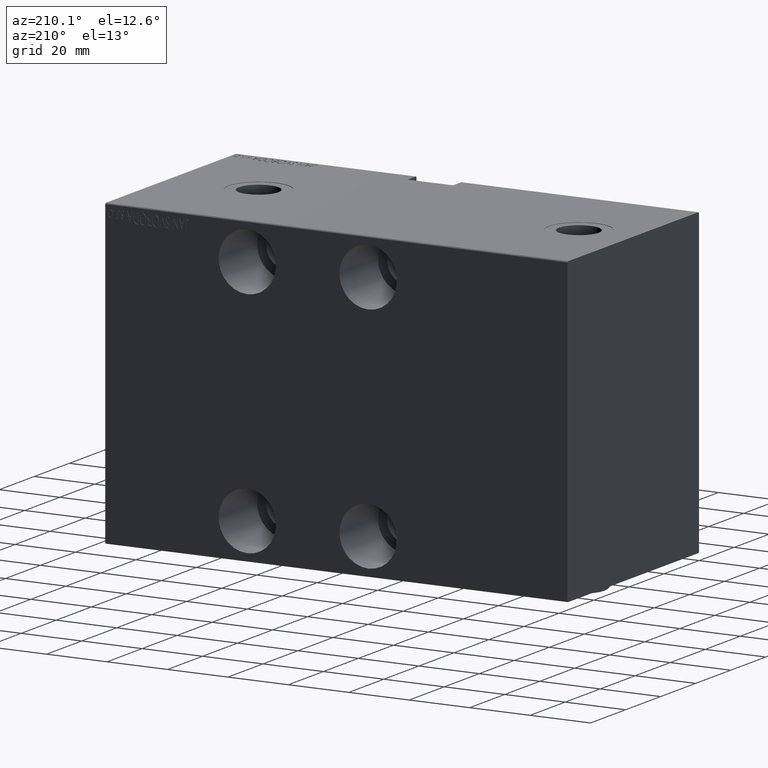
[diagram: clean part render]
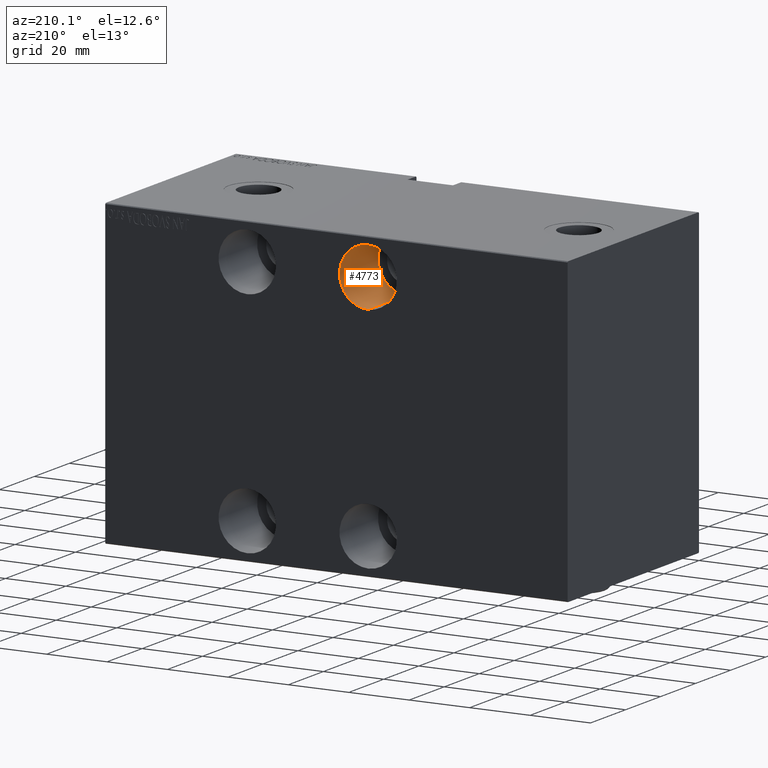
[diagram: same view with one face highlighted and labeled with its STEP entity id]
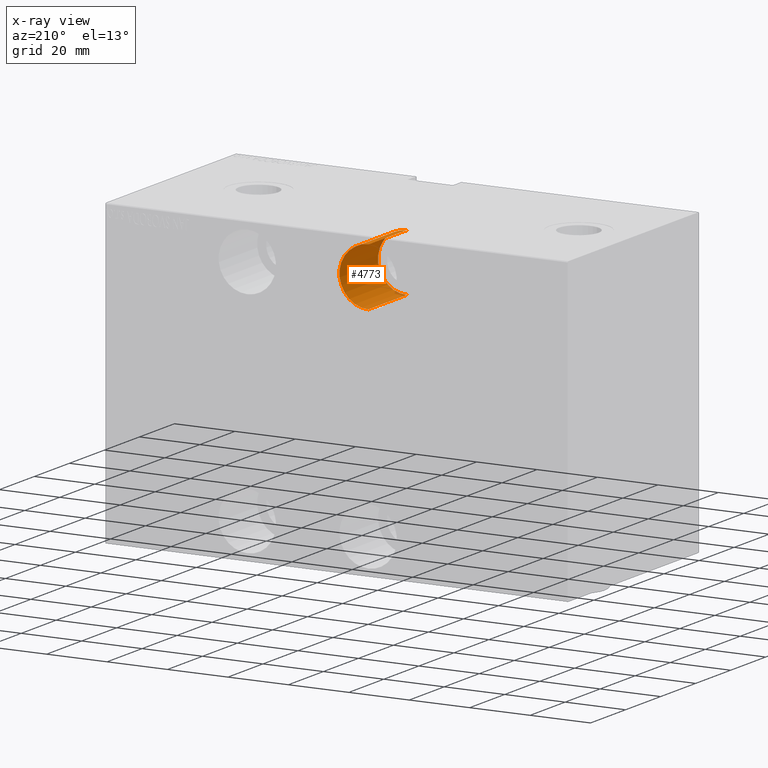
[diagram: x-ray of the same camera — body ghosted, the highlighted face saturated]
A machine part, auxiliary view. The second image highlights one B-rep face of the part: STEP entity #4773.
The next image is the same camera in x-ray: the body ghosted, the highlighted face saturated — about 2% of this face is hidden behind the body in this view.
In plain terms, the highlighted cylindrical surface (edge-blend (fillet) strip) has radius 9.5 mm, axis along (-0, 1, 0).
Its self-contained STEP definition (entity closure, byte-faithful):
#20 = CIRCLE ( 'NONE', #20809, 9.499999999999994671 ) ;
#2049 = CYLINDRICAL_SURFACE ( 'NONE', #6008, 9.499999999999994671 ) ;
#4773 = ADVANCED_FACE ( 'NONE', ( #39731 ), #2049, .F. ) ;
#6008 = AXIS2_PLACEMENT_3D ( 'NONE', #26492, #13264, #33442 ) ;
#7163 = VERTEX_POINT ( 'NONE', #8472 ) ;
#8472 = CARTESIAN_POINT ( 'NONE',  ( 87.00000000000000000, -37.49999999999999289, 47.50000000000000000 ) ) ;
#9937 = EDGE_LOOP ( 'NONE', ( #29659, #27961, #31746, #17761 ) ) ;
#10955 = DIRECTION ( 'NONE',  ( -0.000000000000000000, -1.000000000000000000, -0.000000000000000000 ) ) ;
#12194 = VERTEX_POINT ( 'NONE', #24805 ) ;
#12493 = DIRECTION ( 'NONE',  ( 0.000000000000000000, 0.000000000000000000, -1.000000000000000000 ) ) ;
#12934 = DIRECTION ( 'NONE',  ( 0.000000000000000000, -1.000000000000000000, 0.000000000000000000 ) ) ;
#13264 = DIRECTION ( 'NONE',  ( -0.000000000000000000, -1.000000000000000000, -0.000000000000000000 ) ) ;
#13905 = CARTESIAN_POINT ( 'NONE',  ( 87.00000000000000000, -15.49999999999999289, 28.50000000000001066 ) ) ;
#14662 = VECTOR ( 'NONE', #17488, 1000.000000000000000 ) ;
#15153 = CARTESIAN_POINT ( 'NONE',  ( 87.00000000000000000, -37.49999999999999289, 38.00000000000000711 ) ) ;
#17488 = DIRECTION ( 'NONE',  ( -0.000000000000000000, -1.000000000000000000, -0.000000000000000000 ) ) ;
#17761 = ORIENTED_EDGE ( 'NONE', *, *, #24567, .F. ) ;
#19655 = CARTESIAN_POINT ( 'NONE',  ( 87.00000000000000000, -15.49999999999999289, 38.00000000000000711 ) ) ;
#20809 = AXIS2_PLACEMENT_3D ( 'NONE', #19655, #12934, #12493 ) ;
#21769 = EDGE_CURVE ( 'NONE', #23493, #7163, #37633, .T. ) ;
#23493 = VERTEX_POINT ( 'NONE', #32232 ) ;
#24413 = DIRECTION ( 'NONE',  ( 0.000000000000000000, 0.000000000000000000, -1.000000000000000000 ) ) ;
#24567 = EDGE_CURVE ( 'NONE', #12194, #37439, #41916, .T. ) ;
#24805 = CARTESIAN_POINT ( 'NONE',  ( 87.00000000000000000, -15.49999999999999289, 28.50000000000001066 ) ) ;
#26492 = CARTESIAN_POINT ( 'NONE',  ( 87.00000000000000000, -15.49999999999999289, 38.00000000000000711 ) ) ;
#27030 = CIRCLE ( 'NONE', #38499, 9.499999999999994671 ) ;
#27961 = ORIENTED_EDGE ( 'NONE', *, *, #21769, .T. ) ;
#27978 = CARTESIAN_POINT ( 'NONE',  ( 87.00000000000000000, -15.49999999999999289, 47.50000000000000000 ) ) ;
#28271 = CARTESIAN_POINT ( 'NONE',  ( 87.00000000000000000, -37.49999999999999289, 28.50000000000001066 ) ) ;
#28819 = DIRECTION ( 'NONE',  ( 0.000000000000000000, -1.000000000000000000, 0.000000000000000000 ) ) ;
#29659 = ORIENTED_EDGE ( 'NONE', *, *, #43796, .F. ) ;
#31746 = ORIENTED_EDGE ( 'NONE', *, *, #37966, .T. ) ;
#32232 = CARTESIAN_POINT ( 'NONE',  ( 87.00000000000000000, -15.49999999999999289, 47.50000000000000000 ) ) ;
#33442 = DIRECTION ( 'NONE',  ( 0.000000000000000000, 0.000000000000000000, -1.000000000000000000 ) ) ;
#37439 = VERTEX_POINT ( 'NONE', #28271 ) ;
#37633 = LINE ( 'NONE', #27978, #41066 ) ;
#37966 = EDGE_CURVE ( 'NONE', #7163, #37439, #27030, .T. ) ;
#38499 = AXIS2_PLACEMENT_3D ( 'NONE', #15153, #28819, #24413 ) ;
#39731 = FACE_OUTER_BOUND ( 'NONE', #9937, .T. ) ;
#41066 = VECTOR ( 'NONE', #10955, 1000.000000000000000 ) ;
#41916 = LINE ( 'NONE', #13905, #14662 ) ;
#43796 = EDGE_CURVE ( 'NONE', #23493, #12194, #20, .T. ) ;